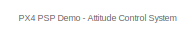
[diagram: root canvas - part 1/4, top center region]
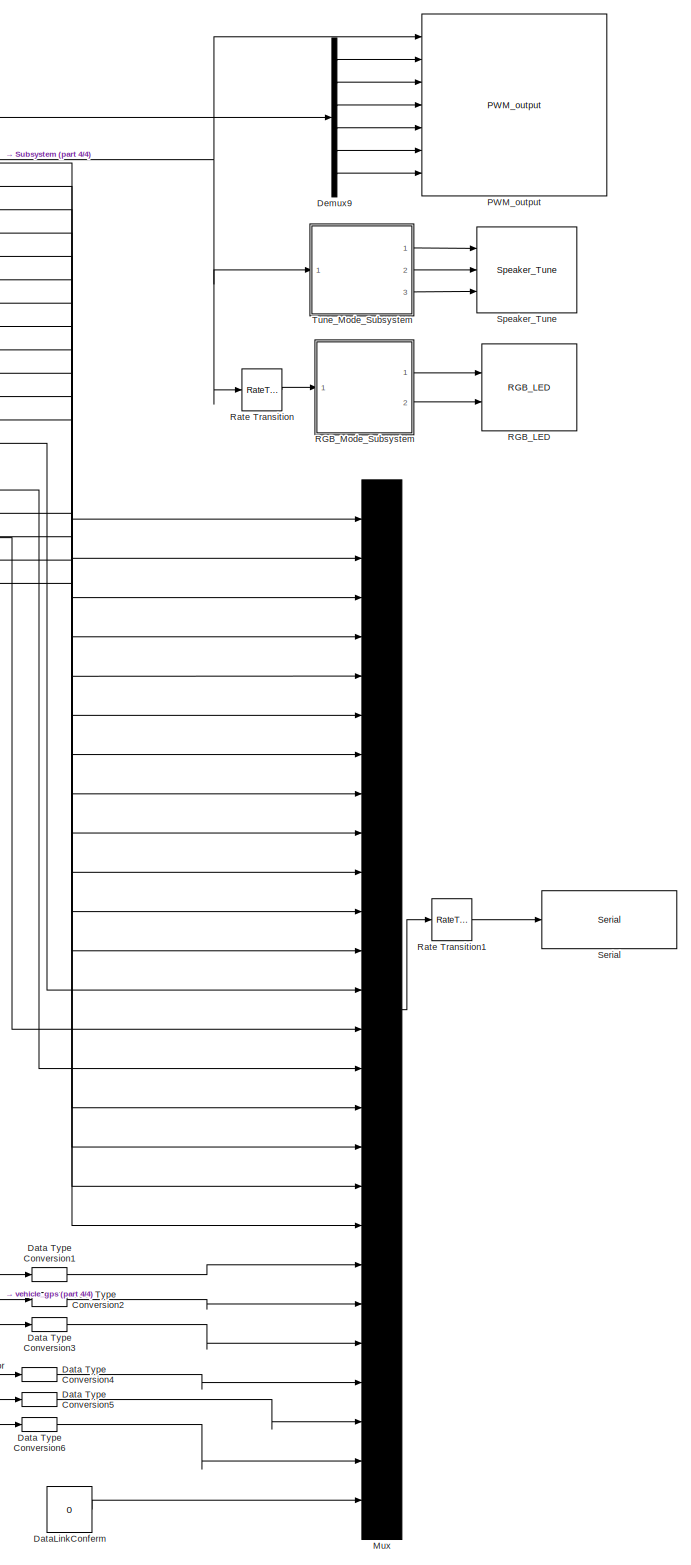
[diagram: root canvas - part 2/4, right side, full height]
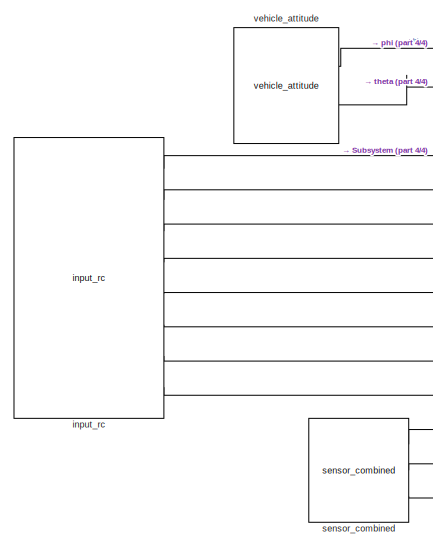
[diagram: root canvas - part 3/4, top left region]
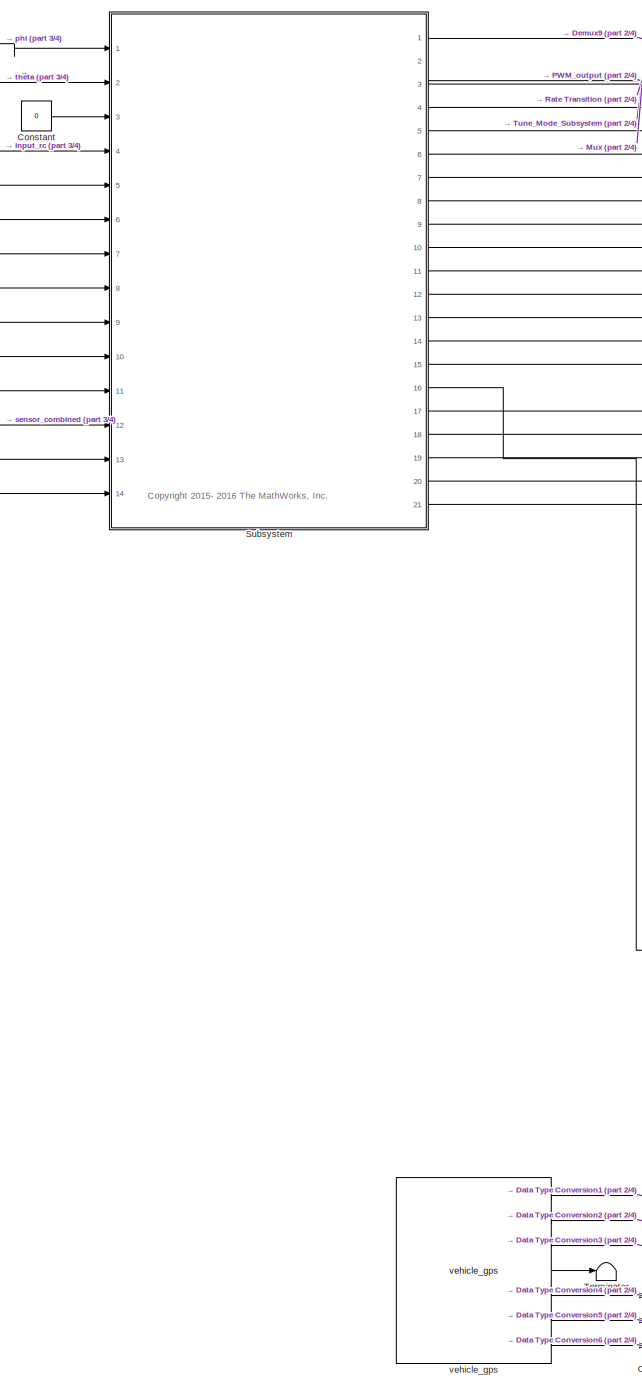
[diagram: root canvas - part 4/4, center side, full height]
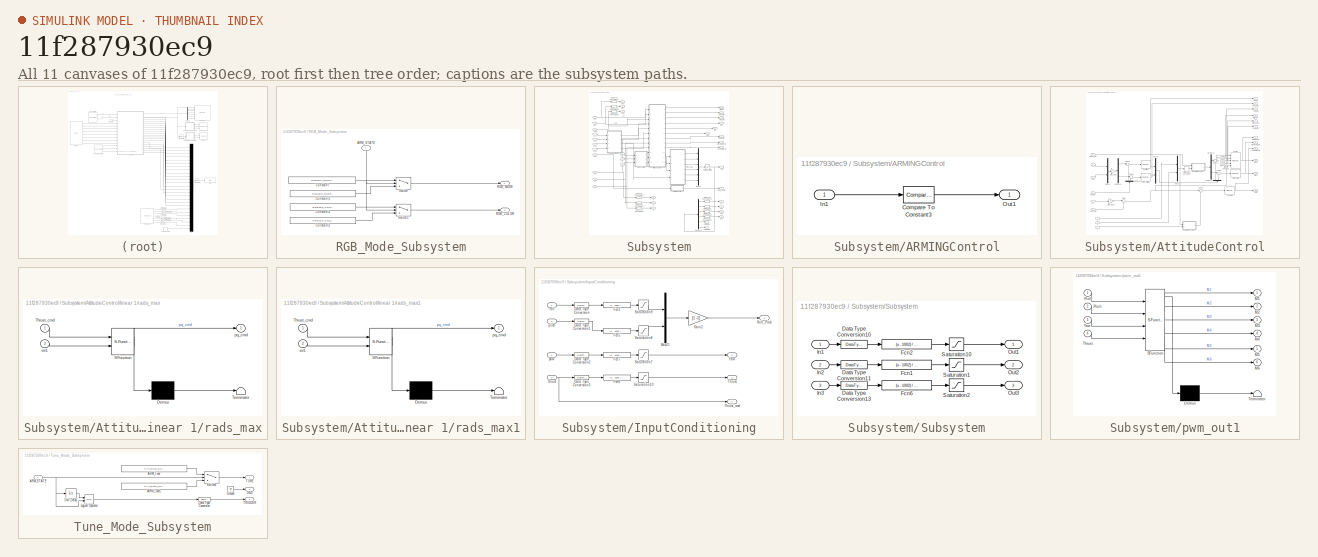
[diagram: thumbnail index - all 11 canvases of the model, root first then tree order]
MODEL slx_11f287930ec9
KIND model
CONFIG AbsTol = auto
CONFIG EnableMultiTasking = off
CONFIG FixedStep = auto
CONFIG MaxStep = auto
CONFIG MinStep = auto
CONFIG PostLoadFcn = kFactor = 1.2;\n\nKpRollAttitude = 0.630138625117681 / kFactor;\nKiRollAttitude = 0.0552303199591522 / kFactor;\n\nKpPitchAttitude = 0.630138625117681 / kFactor;\nKiPitchAttitude = 0.0552303199591522 / kFactor;\n\nKpRollRate = 1.31533836563383 / kFactor;\nKiRollRate = 0.460338699849681 / kFactor;\n\nKpPitchRate = 1.31533836563383 / kFactor;\nKiPitchRate = 0.460338699849681 / kFactor;\n\nKpYawRate = 1.3153383656...<+57ch>
CONFIG RelTol = 1e-3
CONFIG SampleTimeConstraint = Unconstrained
CONFIG Solver = FixedStepDiscrete
CONFIG SolverName = FixedStepDiscrete
CONFIG StartTime = 0.0
CONFIG StopTime = inf
BLOCK [Constant] Constant
  OutDataTypeStr = single
  Value = 0
BLOCK [DataTypeConversion] Data Type Conversion1
  OutDataTypeStr = single
  RndMeth = Floor
  SaturateOnIntegerOverflow = off
BLOCK [DataTypeConversion] Data Type Conversion2
  OutDataTypeStr = single
  RndMeth = Floor
  SaturateOnIntegerOverflow = off
BLOCK [DataTypeConversion] Data Type Conversion3
  OutDataTypeStr = single
  RndMeth = Floor
  SaturateOnIntegerOverflow = off
BLOCK [DataTypeConversion] Data Type Conversion4
  OutDataTypeStr = single
  RndMeth = Floor
  SaturateOnIntegerOverflow = off
BLOCK [DataTypeConversion] Data Type Conversion5
  OutDataTypeStr = single
  RndMeth = Floor
  SaturateOnIntegerOverflow = off
BLOCK [DataTypeConversion] Data Type Conversion6
  OutDataTypeStr = single
  RndMeth = Floor
  SaturateOnIntegerOverflow = off
BLOCK [Constant] DataLinkConferm
  OutDataTypeStr = single
  Value = 0
BLOCK [Demux] Demux9
  DisplayOption = bar
  Outputs = 6
  Ports = [1, 6]
BLOCK [Mux] Mux
  DisplayOption = bar
  Inputs = 26
  Ports = [26, 1]
BLOCK [Reference] PWM_output  REF=pixhawk_slib_sensors_actuators/PWM_output
  Ports = [7]
  SourceBlock = pixhawk_slib_sensors_actuators/PWM_output
  SourceType = PX4_Output_PWM
BLOCK [Reference] RGB_LED  REF=pixhawk_slib_sensors_actuators/RGB_LED
  Ports = [2]
  SourceBlock = pixhawk_slib_sensors_actuators/RGB_LED
  SourceType = PX4_RGBLED - controls the mode and color of the Pixhawk RGB LED
BLOCK [SubSystem] RGB_Mode_Subsystem
  Ports = [1, 2]
  RequestExecContextInheritance = off
  Variant = off
BLOCK [Inport] RGB_Mode_Subsystem/ARM_STATE
  IconDisplay = Port number
BLOCK [Constant] RGB_Mode_Subsystem/Constant
  OutDataTypeStr = Enum: RGBLED_MODE_ENUM
  Value = RGBLED_MODE_ENUM.MODE_BLINK_FAST
BLOCK [Constant] RGB_Mode_Subsystem/Constant1
  OutDataTypeStr = Enum: RGBLED_MODE_ENUM
  Value = RGBLED_MODE_ENUM.MODE_BREATHE
BLOCK [Constant] RGB_Mode_Subsystem/Constant2
  OutDataTypeStr = Enum: RGBLED_COLOR_ENUM
  Value = RGBLED_COLOR_ENUM.COLOR_GREEN
BLOCK [Constant] RGB_Mode_Subsystem/Constant3
  OutDataTypeStr = Enum: RGBLED_COLOR_ENUM
  Value = RGBLED_COLOR_ENUM.COLOR_RED
BLOCK [Outport] RGB_Mode_Subsystem/RGB_COLOR
  IconDisplay = Port number
  Port = 2
BLOCK [Outport] RGB_Mode_Subsystem/RGB_MODE
  IconDisplay = Port number
BLOCK [Switch] RGB_Mode_Subsystem/Switch
  Criteria = u2 ~= 0
  InputSameDT = off
  SampleTime = 1/2
  SaturateOnIntegerOverflow = off
  Threshold = 1500
BLOCK [Switch] RGB_Mode_Subsystem/Switch1
  Criteria = u2 ~= 0
  InputSameDT = off
  SampleTime = 1/2
  SaturateOnIntegerOverflow = off
  Threshold = 1500
BLOCK [RateTransition] Rate Transition
  OutPortSampleTime = 1
BLOCK [RateTransition] Rate Transition1
  OutPortSampleTime = 1
BLOCK [Reference] Serial  REF=pixhawk_slib_ADC_serial/Serial
  Ports = [1]
  SourceBlock = pixhawk_slib_ADC_serial/Serial
  SourceType = codertarget.pixhawk.blocks.SerialCOM
BLOCK [Reference] Speaker_Tune  REF=pixhawk_slib_sensors_actuators/Speaker_Tune
  Ports = [3]
  SourceBlock = pixhawk_slib_sensors_actuators/Speaker_Tune
  SourceType = PX4_Play_Tune - Plays a predefined tune or one based on a "string"
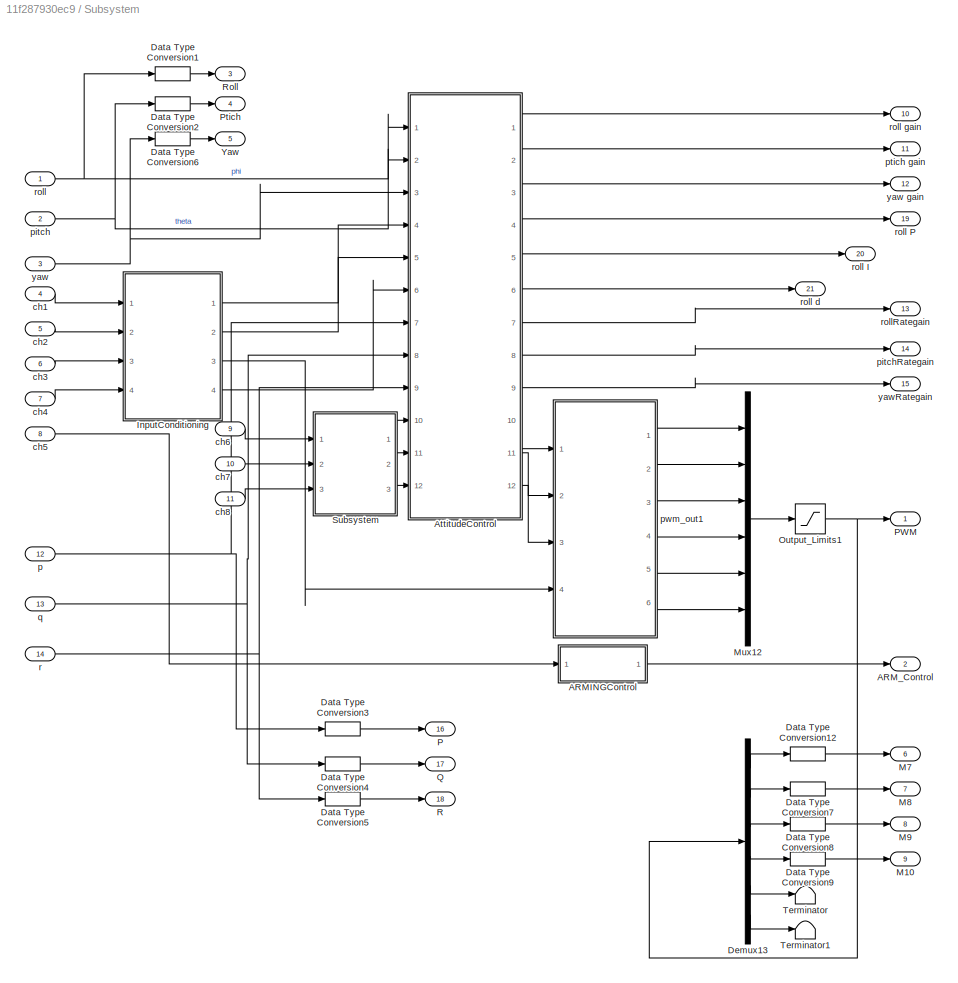
BLOCK [SubSystem] Subsystem
  Ports = [14, 21]
  RequestExecContextInheritance = off
  Variant = off
BLOCK [SubSystem] Subsystem/ARMINGControl
  Ports = [1, 1]
  RequestExecContextInheritance = off
  Variant = off
BLOCK [Reference] Subsystem/ARMINGControl/Compare To Constant3  REF=simulink/Logic and Bit
Operations/Compare
To Constant
  Ports = [1, 1]
  SourceBlock = simulink/Logic and Bit\nOperations/Compare\nTo Constant
  SourceType = Compare To Constant
BLOCK [Inport] Subsystem/ARMINGControl/In1
  IconDisplay = Port number
BLOCK [Outport] Subsystem/ARMINGControl/Out1
  IconDisplay = Port number
BLOCK [Outport] Subsystem/ARM_Control
  IconDisplay = Port number
  Port = 2
  PortDimensions = 1
  SamplingMode = Sample based
  SignalType = real
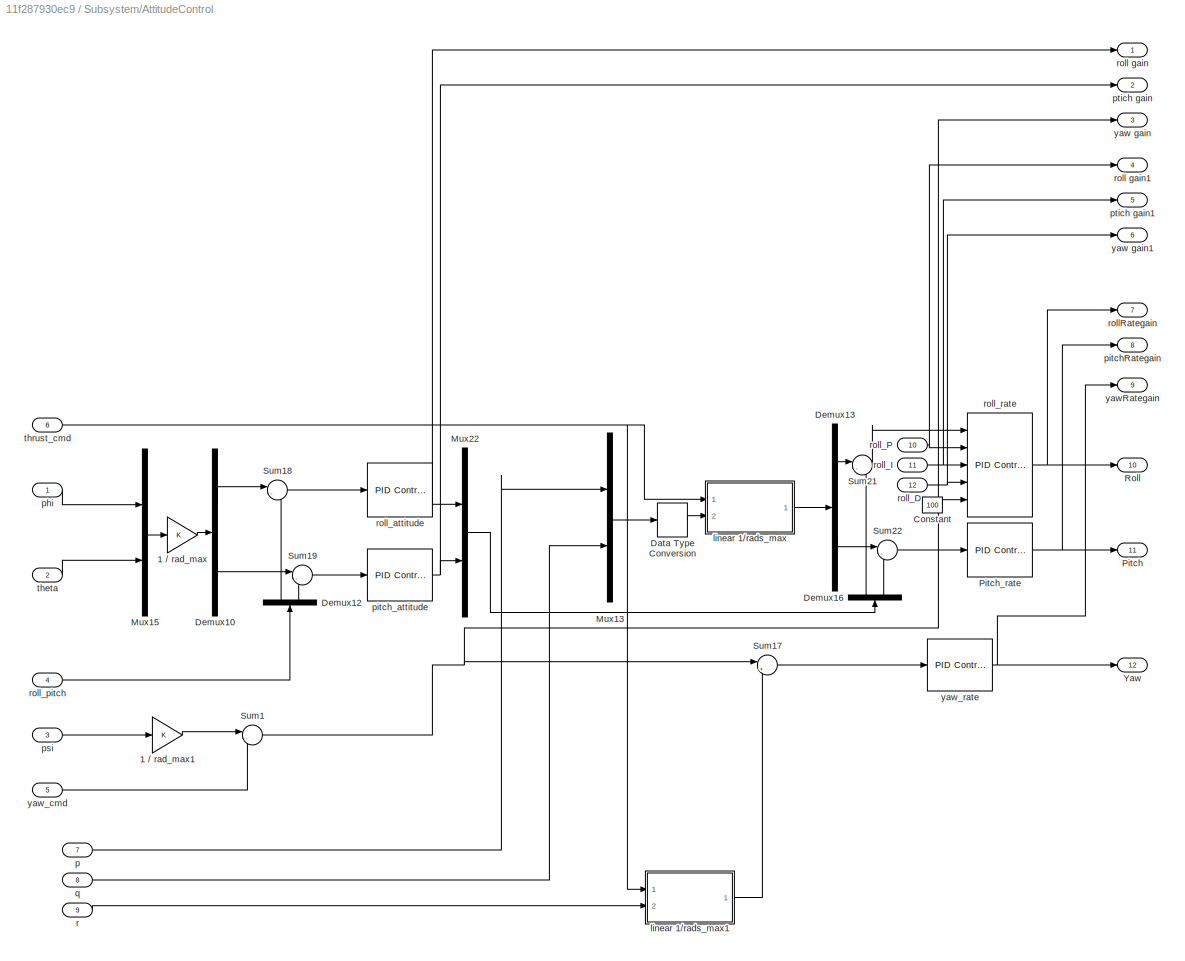
BLOCK [SubSystem] Subsystem/AttitudeControl
  Ports = [12, 12]
  RequestExecContextInheritance = off
  Variant = off
BLOCK [Gain] Subsystem/AttitudeControl/1 // rad_max
  OutDataTypeStr = Inherit: Inherit via internal rule
  ParamDataTypeStr = Inherit: Inherit via internal rule
  SaturateOnIntegerOverflow = off
BLOCK [Gain] Subsystem/AttitudeControl/1 // rad_max1
  OutDataTypeStr = Inherit: Inherit via internal rule
  ParamDataTypeStr = Inherit: Inherit via internal rule
  SaturateOnIntegerOverflow = off
BLOCK [Constant] Subsystem/AttitudeControl/Constant
  OutDataTypeStr = single
  Value = 100
BLOCK [DataTypeConversion] Subsystem/AttitudeControl/Data Type Conversion
  OutDataTypeStr = single
  RndMeth = Floor
  SaturateOnIntegerOverflow = off
BLOCK [Demux] Subsystem/AttitudeControl/Demux10
  DisplayOption = bar
  Outputs = 2
  Ports = [1, 2]
BLOCK [Demux] Subsystem/AttitudeControl/Demux12
  DisplayOption = bar
  Outputs = 2
  Ports = [1, 2]
BLOCK [Demux] Subsystem/AttitudeControl/Demux13
  DisplayOption = bar
  Outputs = 2
  Ports = [1, 2]
BLOCK [Demux] Subsystem/AttitudeControl/Demux16
  DisplayOption = bar
  Outputs = 2
  Ports = [1, 2]
BLOCK [Mux] Subsystem/AttitudeControl/Mux13
  DisplayOption = bar
  Inputs = 2
  Ports = [2, 1]
BLOCK [Mux] Subsystem/AttitudeControl/Mux15
  DisplayOption = bar
  Inputs = 2
  Ports = [2, 1]
BLOCK [Mux] Subsystem/AttitudeControl/Mux22
  DisplayOption = bar
  Inputs = 2
  Ports = [2, 1]
BLOCK [Outport] Subsystem/AttitudeControl/Pitch
  IconDisplay = Port number
  Port = 11
BLOCK [Reference] Subsystem/AttitudeControl/Pitch_rate  REF=simulink/Continuous/PID Controller
  Ports = [1, 1]
  SourceBlock = simulink/Continuous/PID Controller
  SourceType = PID 1dof
BLOCK [Outport] Subsystem/AttitudeControl/Roll
  IconDisplay = Port number
  Port = 10
BLOCK [Sum] Subsystem/AttitudeControl/Sum1
  IconShape = round
  InputSameDT = off
  Inputs = |-+
  OutDataTypeStr = Inherit: Inherit via internal rule
  Ports = [2, 1]
  SaturateOnIntegerOverflow = off
BLOCK [Sum] Subsystem/AttitudeControl/Sum17
  IconShape = round
  InputSameDT = off
  Inputs = |+-
  OutDataTypeStr = Inherit: Inherit via internal rule
  Ports = [2, 1]
  SaturateOnIntegerOverflow = off
BLOCK [Sum] Subsystem/AttitudeControl/Sum18
  IconShape = round
  InputSameDT = off
  Inputs = |-+
  OutDataTypeStr = Inherit: Inherit via internal rule
  Ports = [2, 1]
  SaturateOnIntegerOverflow = off
BLOCK [Sum] Subsystem/AttitudeControl/Sum19
  IconShape = round
  InputSameDT = off
  Inputs = |-+
  OutDataTypeStr = Inherit: Inherit via internal rule
  Ports = [2, 1]
  SaturateOnIntegerOverflow = off
BLOCK [Sum] Subsystem/AttitudeControl/Sum21
  IconShape = round
  InputSameDT = off
  Inputs = |-+
  OutDataTypeStr = Inherit: Inherit via internal rule
  Ports = [2, 1]
  SaturateOnIntegerOverflow = off
BLOCK [Sum] Subsystem/AttitudeControl/Sum22
  IconShape = round
  InputSameDT = off
  Inputs = |-+
  OutDataTypeStr = Inherit: Inherit via internal rule
  Ports = [2, 1]
  SaturateOnIntegerOverflow = off
BLOCK [Outport] Subsystem/AttitudeControl/Yaw
  IconDisplay = Port number
  Port = 12
BLOCK [SubSystem] Subsystem/AttitudeControl/linear 1//rads_max
  ErrorFcn = Stateflow.Translate.translate
  PermitHierarchicalResolution = ExplicitOnly
  Ports = [2, 1]
  RequestExecContextInheritance = off
  SFBlockType = MATLAB Function
  TreatAsAtomicUnit = on
  Variant = off
BLOCK [Demux] Subsystem/AttitudeControl/linear 1//rads_max/ Demux 
  Outputs = 1
  Ports = [1, 1]
BLOCK [S-Function] Subsystem/AttitudeControl/linear 1//rads_max/ SFunction 
  EnableBusSupport = on
  FunctionName = sf_sfun
  PortCounts = [2 2]
  Ports = [2, 2]
  SFcnIsStateOwnerBlock = off
  SFunctionDeploymentMode = off
  Tag = Stateflow S-Function px4demo_attitude_system_GCS_combined_AttiGain2 2
BLOCK [Terminator] Subsystem/AttitudeControl/linear 1//rads_max/ Terminator 
BLOCK [Inport] Subsystem/AttitudeControl/linear 1//rads_max/Thrust_cmd
  IconDisplay = Port number
BLOCK [Inport] Subsystem/AttitudeControl/linear 1//rads_max/err1
  IconDisplay = Port number
  Port = 2
BLOCK [Outport] Subsystem/AttitudeControl/linear 1//rads_max/pq_cmd
  IconDisplay = Port number
BLOCK [SubSystem] Subsystem/AttitudeControl/linear 1//rads_max1
  ErrorFcn = Stateflow.Translate.translate
  PermitHierarchicalResolution = ExplicitOnly
  Ports = [2, 1]
  RequestExecContextInheritance = off
  SFBlockType = MATLAB Function
  TreatAsAtomicUnit = on
  Variant = off
BLOCK [Demux] Subsystem/AttitudeControl/linear 1//rads_max1/ Demux 
  Outputs = 1
  Ports = [1, 1]
BLOCK [S-Function] Subsystem/AttitudeControl/linear 1//rads_max1/ SFunction 
  EnableBusSupport = on
  FunctionName = sf_sfun
  PortCounts = [2 2]
  Ports = [2, 2]
  SFcnIsStateOwnerBlock = off
  SFunctionDeploymentMode = off
  Tag = Stateflow S-Function px4demo_attitude_system_GCS_combined_AttiGain2 1
BLOCK [Terminator] Subsystem/AttitudeControl/linear 1//rads_max1/ Terminator 
BLOCK [Inport] Subsystem/AttitudeControl/linear 1//rads_max1/Thrust_cmd
  IconDisplay = Port number
BLOCK [Inport] Subsystem/AttitudeControl/linear 1//rads_max1/err1
  IconDisplay = Port number
  Port = 2
BLOCK [Outport] Subsystem/AttitudeControl/linear 1//rads_max1/pq_cmd
  IconDisplay = Port number
BLOCK [Inport] Subsystem/AttitudeControl/p
  IconDisplay = Port number
  Port = 7
BLOCK [Inport] Subsystem/AttitudeControl/phi
  IconDisplay = Port number
BLOCK [Outport] Subsystem/AttitudeControl/pitchRategain
  IconDisplay = Port number
  Port = 8
BLOCK [Reference] Subsystem/AttitudeControl/pitch_attitude  REF=simulink/Continuous/PID Controller
  Ports = [1, 1]
  SourceBlock = simulink/Continuous/PID Controller
  SourceType = PID 1dof
BLOCK [Inport] Subsystem/AttitudeControl/psi
  IconDisplay = Port number
  Port = 3
BLOCK [Outport] Subsystem/AttitudeControl/ptich gain
  IconDisplay = Port number
  Port = 2
BLOCK [Outport] Subsystem/AttitudeControl/ptich gain1
  IconDisplay = Port number
  Port = 5
BLOCK [Inport] Subsystem/AttitudeControl/q
  IconDisplay = Port number
  Port = 8
BLOCK [Inport] Subsystem/AttitudeControl/r
  IconDisplay = Port number
  Port = 9
BLOCK [Outport] Subsystem/AttitudeControl/roll gain
  IconDisplay = Port number
BLOCK [Outport] Subsystem/AttitudeControl/roll gain1
  IconDisplay = Port number
  Port = 4
BLOCK [Outport] Subsystem/AttitudeControl/rollRategain
  IconDisplay = Port number
  Port = 7
BLOCK [Inport] Subsystem/AttitudeControl/roll_D
  IconDisplay = Port number
  Port = 12
BLOCK [Inport] Subsystem/AttitudeControl/roll_I
  IconDisplay = Port number
  Port = 11
BLOCK [Inport] Subsystem/AttitudeControl/roll_P
  IconDisplay = Port number
  Port = 10
BLOCK [Reference] Subsystem/AttitudeControl/roll_attitude  REF=simulink/Continuous/PID Controller
  Ports = [1, 1]
  SourceBlock = simulink/Continuous/PID Controller
  SourceType = PID 1dof
BLOCK [Inport] Subsystem/AttitudeControl/roll_pitch
  IconDisplay = Port number
  Port = 4
BLOCK [Reference] Subsystem/AttitudeControl/roll_rate  REF=simulink/Continuous/PID Controller
  Ports = [5, 1]
  SourceBlock = simulink/Continuous/PID Controller
  SourceType = PID 1dof
BLOCK [Inport] Subsystem/AttitudeControl/theta
  IconDisplay = Port number
  Port = 2
BLOCK [Inport] Subsystem/AttitudeControl/thrust_cmd
  IconDisplay = Port number
  Port = 6
BLOCK [Outport] Subsystem/AttitudeControl/yaw gain
  IconDisplay = Port number
  Port = 3
BLOCK [Outport] Subsystem/AttitudeControl/yaw gain1
  IconDisplay = Port number
  Port = 6
BLOCK [Outport] Subsystem/AttitudeControl/yawRategain
  IconDisplay = Port number
  Port = 9
BLOCK [Inport] Subsystem/AttitudeControl/yaw_cmd
  IconDisplay = Port number
  Port = 5
BLOCK [Reference] Subsystem/AttitudeControl/yaw_rate  REF=simulink/Continuous/PID Controller
  Ports = [1, 1]
  SourceBlock = simulink/Continuous/PID Controller
  SourceType = PID 1dof
BLOCK [DataTypeConversion] Subsystem/Data Type Conversion1
  OutDataTypeStr = single
  RndMeth = Floor
  SaturateOnIntegerOverflow = off
BLOCK [DataTypeConversion] Subsystem/Data Type Conversion12
  OutDataTypeStr = single
  RndMeth = Floor
  SaturateOnIntegerOverflow = off
BLOCK [DataTypeConversion] Subsystem/Data Type Conversion2
  OutDataTypeStr = single
  RndMeth = Floor
  SaturateOnIntegerOverflow = off
BLOCK [DataTypeConversion] Subsystem/Data Type Conversion3
  OutDataTypeStr = single
  RndMeth = Floor
  SaturateOnIntegerOverflow = off
BLOCK [DataTypeConversion] Subsystem/Data Type Conversion4
  OutDataTypeStr = single
  RndMeth = Floor
  SaturateOnIntegerOverflow = off
BLOCK [DataTypeConversion] Subsystem/Data Type Conversion5
  OutDataTypeStr = single
  RndMeth = Floor
  SaturateOnIntegerOverflow = off
BLOCK [DataTypeConversion] Subsystem/Data Type Conversion6
  OutDataTypeStr = single
  RndMeth = Floor
  SaturateOnIntegerOverflow = off
BLOCK [DataTypeConversion] Subsystem/Data Type Conversion7
  OutDataTypeStr = single
  RndMeth = Floor
  SaturateOnIntegerOverflow = off
BLOCK [DataTypeConversion] Subsystem/Data Type Conversion8
  OutDataTypeStr = single
  RndMeth = Floor
  SaturateOnIntegerOverflow = off
BLOCK [DataTypeConversion] Subsystem/Data Type Conversion9
  OutDataTypeStr = single
  RndMeth = Floor
  SaturateOnIntegerOverflow = off
BLOCK [Demux] Subsystem/Demux13
  DisplayOption = bar
  Outputs = 6
  Ports = [1, 6]
BLOCK [SubSystem] Subsystem/InputConditioning
  Ports = [4, 4]
  RequestExecContextInheritance = off
  Variant = off
BLOCK [DataTypeConversion] Subsystem/InputConditioning/Data Type Conversion
  OutDataTypeStr = single
  RndMeth = Floor
  SaturateOnIntegerOverflow = off
BLOCK [DataTypeConversion] Subsystem/InputConditioning/Data Type Conversion1
  OutDataTypeStr = single
  RndMeth = Floor
  SaturateOnIntegerOverflow = off
BLOCK [DataTypeConversion] Subsystem/InputConditioning/Data Type Conversion2
  OutDataTypeStr = single
  RndMeth = Floor
  SaturateOnIntegerOverflow = off
BLOCK [DataTypeConversion] Subsystem/InputConditioning/Data Type Conversion3
  OutDataTypeStr = single
  RndMeth = Floor
  SaturateOnIntegerOverflow = off
BLOCK [Fcn] Subsystem/InputConditioning/Fcn2
  Expr = (u - 1500) / 500
BLOCK [Fcn] Subsystem/InputConditioning/Fcn5
  Expr = (u - 1500) / 500
BLOCK [Fcn] Subsystem/InputConditioning/Fcn6
  Expr = (u - 1000) / 1000
BLOCK [Fcn] Subsystem/InputConditioning/Fcn7
  Expr = (u - 1500) / 500
BLOCK [Gain] Subsystem/InputConditioning/Gain2
  Gain = [1 -1]
  OutDataTypeStr = Inherit: Inherit via back propagation
  ParamDataTypeStr = Inherit: Inherit via internal rule
  SaturateOnIntegerOverflow = off
BLOCK [Mux] Subsystem/InputConditioning/Mux21
  DisplayOption = bar
  Inputs = 2
  Ports = [2, 1]
BLOCK [Outport] Subsystem/InputConditioning/Roll_Pitch
  IconDisplay = Port number
BLOCK [Saturate] Subsystem/InputConditioning/Saturation10
  InputPortMap = u0
  LowerLimit = 0
  Ports = [1, 1]
  UpperLimit = 1
BLOCK [Saturate] Subsystem/InputConditioning/Saturation7
  InputPortMap = u0
  LowerLimit = -1
  Ports = [1, 1]
  UpperLimit = 1
BLOCK [Saturate] Subsystem/InputConditioning/Saturation8
  InputPortMap = u0
  LowerLimit = -1
  Ports = [1, 1]
  UpperLimit = 1
BLOCK [Saturate] Subsystem/InputConditioning/Saturation9
  InputPortMap = u0
  LowerLimit = -1
  Ports = [1, 1]
  UpperLimit = 1
BLOCK [Outport] Subsystem/InputConditioning/Thrust
  IconDisplay = Port number
  Port = 3
BLOCK [Outport] Subsystem/InputConditioning/Thrust_cmd
  IconDisplay = Port number
  Port = 4
BLOCK [Outport] Subsystem/InputConditioning/Yaw
  IconDisplay = Port number
  Port = 2
BLOCK [Inport] Subsystem/InputConditioning/pitch
  IconDisplay = Port number
  Port = 2
BLOCK [Inport] Subsystem/InputConditioning/roll
  IconDisplay = Port number
BLOCK [Inport] Subsystem/InputConditioning/thrust
  IconDisplay = Port number
  Port = 3
BLOCK [Inport] Subsystem/InputConditioning/yaw
  IconDisplay = Port number
  Port = 4
BLOCK [Outport] Subsystem/M10
  IconDisplay = Port number
  Port = 9
  PortDimensions = 1
  SamplingMode = Sample based
  SignalType = real
BLOCK [Outport] Subsystem/M7
  IconDisplay = Port number
  Port = 6
  PortDimensions = 1
  SamplingMode = Sample based
  SignalType = real
BLOCK [Outport] Subsystem/M8
  IconDisplay = Port number
  Port = 7
  PortDimensions = 1
  SamplingMode = Sample based
  SignalType = real
BLOCK [Outport] Subsystem/M9
  IconDisplay = Port number
  Port = 8
  PortDimensions = 1
  SamplingMode = Sample based
  SignalType = real
BLOCK [Mux] Subsystem/Mux12
  DisplayOption = bar
  Inputs = 6
  Ports = [6, 1]
BLOCK [Saturate] Subsystem/Output_Limits1
  InputPortMap = u0
  LowerLimit = 1000
  Ports = [1, 1]
  UpperLimit = 2000
BLOCK [Outport] Subsystem/P
  IconDisplay = Port number
  Port = 16
  PortDimensions = 1
  SamplingMode = Sample based
  SignalType = real
BLOCK [Outport] Subsystem/PWM
  IconDisplay = Port number
  PortDimensions = 6
  SamplingMode = Sample based
  SignalType = real
BLOCK [Outport] Subsystem/Ptich
  IconDisplay = Port number
  Port = 4
  PortDimensions = 1
  SamplingMode = Sample based
  SignalType = real
BLOCK [Outport] Subsystem/Q
  IconDisplay = Port number
  Port = 17
  PortDimensions = 1
  SamplingMode = Sample based
  SignalType = real
BLOCK [Outport] Subsystem/R
  IconDisplay = Port number
  Port = 18
  PortDimensions = 1
  SamplingMode = Sample based
  SignalType = real
BLOCK [Outport] Subsystem/Roll
  IconDisplay = Port number
  Port = 3
  PortDimensions = 1
  SamplingMode = Sample based
  SignalType = real
BLOCK [SubSystem] Subsystem/Subsystem
  Ports = [3, 3]
  RequestExecContextInheritance = off
  Variant = off
BLOCK [DataTypeConversion] Subsystem/Subsystem/Data Type Conversion10
  OutDataTypeStr = single
  RndMeth = Floor
  SaturateOnIntegerOverflow = off
BLOCK [DataTypeConversion] Subsystem/Subsystem/Data Type Conversion11
  OutDataTypeStr = single
  RndMeth = Floor
  SaturateOnIntegerOverflow = off
BLOCK [DataTypeConversion] Subsystem/Subsystem/Data Type Conversion13
  OutDataTypeStr = single
  RndMeth = Floor
  SaturateOnIntegerOverflow = off
BLOCK [Fcn] Subsystem/Subsystem/Fcn1
  Expr = (u - 1002) / 996
BLOCK [Fcn] Subsystem/Subsystem/Fcn2
  Expr = (u - 1002) / 996
BLOCK [Fcn] Subsystem/Subsystem/Fcn6
  Expr = (u - 1002) / 996
BLOCK [Inport] Subsystem/Subsystem/In1
  IconDisplay = Port number
BLOCK [Inport] Subsystem/Subsystem/In2
  IconDisplay = Port number
  Port = 2
BLOCK [Inport] Subsystem/Subsystem/In3
  IconDisplay = Port number
  Port = 3
BLOCK [Outport] Subsystem/Subsystem/Out1
  IconDisplay = Port number
BLOCK [Outport] Subsystem/Subsystem/Out2
  IconDisplay = Port number
  Port = 2
BLOCK [Outport] Subsystem/Subsystem/Out3
  IconDisplay = Port number
  Port = 3
BLOCK [Saturate] Subsystem/Subsystem/Saturation1
  InputPortMap = u0
  LowerLimit = 0
  Ports = [1, 1]
  UpperLimit = 1
BLOCK [Saturate] Subsystem/Subsystem/Saturation10
  InputPortMap = u0
  LowerLimit = 0
  Ports = [1, 1]
  UpperLimit = 1
BLOCK [Saturate] Subsystem/Subsystem/Saturation2
  InputPortMap = u0
  LowerLimit = 0
  Ports = [1, 1]
  UpperLimit = 1
BLOCK [Terminator] Subsystem/Terminator
BLOCK [Terminator] Subsystem/Terminator1
BLOCK [Outport] Subsystem/Yaw
  IconDisplay = Port number
  Port = 5
  PortDimensions = 1
  SamplingMode = Sample based
  SignalType = real
BLOCK [Inport] Subsystem/ch1
  IconDisplay = Port number
  OutDataTypeStr = uint16
  Port = 4
  PortDimensions = 1
  SamplingMode = Sample based
  SignalType = real
BLOCK [Inport] Subsystem/ch2
  IconDisplay = Port number
  OutDataTypeStr = uint16
  Port = 5
  PortDimensions = 1
  SamplingMode = Sample based
  SignalType = real
BLOCK [Inport] Subsystem/ch3
  IconDisplay = Port number
  OutDataTypeStr = uint16
  Port = 6
  PortDimensions = 1
  SamplingMode = Sample based
  SignalType = real
BLOCK [Inport] Subsystem/ch4
  IconDisplay = Port number
  OutDataTypeStr = uint16
  Port = 7
  PortDimensions = 1
  SamplingMode = Sample based
  SignalType = real
BLOCK [Inport] Subsystem/ch5
  IconDisplay = Port number
  Interpolate = off
  OutDataTypeStr = uint16
  Port = 8
  PortDimensions = 1
  SamplingMode = Sample based
  SignalType = real
BLOCK [Inport] Subsystem/ch6
  IconDisplay = Port number
  OutDataTypeStr = uint16
  Port = 9
  PortDimensions = 1
  SamplingMode = Sample based
  SignalType = real
BLOCK [Inport] Subsystem/ch7
  IconDisplay = Port number
  OutDataTypeStr = uint16
  Port = 10
  PortDimensions = 1
  SamplingMode = Sample based
  SignalType = real
BLOCK [Inport] Subsystem/ch8
  IconDisplay = Port number
  OutDataTypeStr = uint16
  Port = 11
  PortDimensions = 1
  SamplingMode = Sample based
  SignalType = real
BLOCK [Inport] Subsystem/p
  IconDisplay = Port number
  OutDataTypeStr = single
  Port = 12
  PortDimensions = 1
  SamplingMode = Sample based
  SignalType = real
BLOCK [Inport] Subsystem/pitch
  IconDisplay = Port number
  Port = 2
  PortDimensions = 1
  SamplingMode = Sample based
  SignalType = real
BLOCK [Outport] Subsystem/pitchRategain
  IconDisplay = Port number
  Port = 14
BLOCK [Outport] Subsystem/ptich gain
  IconDisplay = Port number
  Port = 11
BLOCK [SubSystem] Subsystem/pwm_out1
  ErrorFcn = Stateflow.Translate.translate
  PermitHierarchicalResolution = ExplicitOnly
  Ports = [4, 6]
  RequestExecContextInheritance = off
  SFBlockType = MATLAB Function
  SystemSampleTime = 0.004
  TreatAsAtomicUnit = on
  Variant = off
BLOCK [Demux] Subsystem/pwm_out1/ Demux 
  Outputs = 1
  Ports = [1, 1]
BLOCK [S-Function] Subsystem/pwm_out1/ SFunction 
  EnableBusSupport = on
  FunctionName = sf_sfun
  PortCounts = [4 7]
  Ports = [4, 7]
  SFcnIsStateOwnerBlock = off
  SFunctionDeploymentMode = off
  Tag = Stateflow S-Function px4demo_attitude_system_GCS_combined_AttiGain2 4
BLOCK [Terminator] Subsystem/pwm_out1/ Terminator 
BLOCK [Outport] Subsystem/pwm_out1/M1
  IconDisplay = Port number
BLOCK [Outport] Subsystem/pwm_out1/M2
  IconDisplay = Port number
  Port = 2
BLOCK [Outport] Subsystem/pwm_out1/M3
  IconDisplay = Port number
  Port = 3
BLOCK [Outport] Subsystem/pwm_out1/M4
  IconDisplay = Port number
  Port = 4
BLOCK [Outport] Subsystem/pwm_out1/M5
  IconDisplay = Port number
  Port = 5
BLOCK [Outport] Subsystem/pwm_out1/M6
  IconDisplay = Port number
  Port = 6
BLOCK [Inport] Subsystem/pwm_out1/Pitch
  IconDisplay = Port number
  Port = 2
BLOCK [Inport] Subsystem/pwm_out1/Roll
  IconDisplay = Port number
BLOCK [Inport] Subsystem/pwm_out1/Thrust
  IconDisplay = Port number
  Port = 4
BLOCK [Inport] Subsystem/pwm_out1/Yaw
  IconDisplay = Port number
  Port = 3
BLOCK [Inport] Subsystem/q
  IconDisplay = Port number
  OutDataTypeStr = single
  Port = 13
  PortDimensions = 1
  SamplingMode = Sample based
  SignalType = real
BLOCK [Inport] Subsystem/r
  IconDisplay = Port number
  Port = 14
  PortDimensions = 1
  SamplingMode = Sample based
  SignalType = real
BLOCK [Inport] Subsystem/roll
  IconDisplay = Port number
  OutDataTypeStr = single
  PortDimensions = 1
  SamplingMode = Sample based
  SignalType = real
BLOCK [Outport] Subsystem/roll I
  IconDisplay = Port number
  Port = 20
BLOCK [Outport] Subsystem/roll P
  IconDisplay = Port number
  Port = 19
BLOCK [Outport] Subsystem/roll d
  IconDisplay = Port number
  Port = 21
BLOCK [Outport] Subsystem/roll gain
  IconDisplay = Port number
  Port = 10
BLOCK [Outport] Subsystem/rollRategain
  IconDisplay = Port number
  Port = 13
BLOCK [Inport] Subsystem/yaw
  IconDisplay = Port number
  Port = 3
  PortDimensions = 1
  SamplingMode = Sample based
  SignalType = real
BLOCK [Outport] Subsystem/yaw gain
  IconDisplay = Port number
  Port = 12
BLOCK [Outport] Subsystem/yawRategain
  IconDisplay = Port number
  Port = 15
BLOCK [Terminator] Terminator
BLOCK [SubSystem] Tune_Mode_Subsystem
  Ports = [1, 3]
  RequestExecContextInheritance = off
  Variant = off
BLOCK [Inport] Tune_Mode_Subsystem/ARM_STATE
  IconDisplay = Port number
BLOCK [Constant] Tune_Mode_Subsystem/ARM_Tune
  OutDataTypeStr = Enum: PX4_TUNE_ENUM
  Value = PX4_TUNE_ENUM.ARMING_WARNING_TUNE
BLOCK [Constant] Tune_Mode_Subsystem/ARM_Tune1
  OutDataTypeStr = Enum: PX4_TUNE_ENUM
  Value = PX4_TUNE_ENUM.NOTIFY_POSITIVE_TUNE
BLOCK [DataTypeConversion] Tune_Mode_Subsystem/Data Type Conversion
  OutDataTypeStr = uint8
  RndMeth = Floor
  SaturateOnIntegerOverflow = off
BLOCK [Outport] Tune_Mode_Subsystem/GND
  IconDisplay = Port number
  Port = 2
BLOCK [Ground] Tune_Mode_Subsystem/Ground
BLOCK [Logic] Tune_Mode_Subsystem/Logical Operator
  AllPortsSameDT = off
  IconShape = distinctive
  Operator = XOR
  OutDataTypeStr = boolean
  Ports = [2, 1]
BLOCK [Switch] Tune_Mode_Subsystem/Switch1
  Criteria = u2 ~= 0
  InputSameDT = off
  SaturateOnIntegerOverflow = off
  Threshold = 1500
BLOCK [Outport] Tune_Mode_Subsystem/TRIGGER
  IconDisplay = Port number
  Port = 3
BLOCK [Outport] Tune_Mode_Subsystem/TUNE
  IconDisplay = Port number
BLOCK [UnitDelay] Tune_Mode_Subsystem/Unit Delay
  InputProcessing = Elements as channels (sample based)
  SampleTime = -1
BLOCK [Reference] input_rc  REF=pixhawk_slib_sensors_actuators/input_rc
  Ports = [0, 8]
  SourceBlock = pixhawk_slib_sensors_actuators/input_rc
  SourceType = PX4_Input_RC
BLOCK [Reference] sensor_combined  REF=pixhawk_slib_sensors_actuators/sensor_combined
  Ports = [0, 3]
  SourceBlock = pixhawk_slib_sensors_actuators/sensor_combined
  SourceType = PX4_Sensor_Combined
BLOCK [Reference] vehicle_attitude  REF=pixhawk_slib_sensors_actuators/vehicle_attitude
  Ports = [0, 2]
  SourceBlock = pixhawk_slib_sensors_actuators/vehicle_attitude
  SourceType = PX4_Vehicle_Attitude
BLOCK [Reference] vehicle_gps  REF=pixhawk_slib_sensors_actuators/vehicle_gps
  Ports = [0, 7]
  SourceBlock = pixhawk_slib_sensors_actuators/vehicle_gps
  SourceType = PX4_Vehicle_GPS
ANNOTATION (root): PX4 PSP Demo - Attitude Control System
ANNOTATION (root): <copyright redacted>
LINE Constant:1 -> Subsystem:3
LINE Data Type Conversion1:1 -> Mux:20
LINE Data Type Conversion2:1 -> Mux:21
LINE Data Type Conversion3:1 -> Mux:22
LINE Data Type Conversion4:1 -> Mux:23
LINE Data Type Conversion5:1 -> Mux:24
LINE Data Type Conversion6:1 -> Mux:25
LINE DataLinkConferm:1 -> Mux:26
LINE Demux9:1 -> PWM_output:2
LINE Demux9:2 -> PWM_output:3
LINE Demux9:3 -> PWM_output:4
LINE Demux9:4 -> PWM_output:5
LINE Demux9:5 -> PWM_output:6
LINE Demux9:6 -> PWM_output:7
LINE Mux:1 -> Rate Transition1:1
NET RGB_Mode_Subsystem/ARM_STATE:1 -> RGB_Mode_Subsystem/Switch1:2, RGB_Mode_Subsystem/Switch:2
LINE RGB_Mode_Subsystem/Constant1:1 -> RGB_Mode_Subsystem/Switch:3
LINE RGB_Mode_Subsystem/Constant2:1 -> RGB_Mode_Subsystem/Switch1:3
LINE RGB_Mode_Subsystem/Constant3:1 -> RGB_Mode_Subsystem/Switch1:1
LINE RGB_Mode_Subsystem/Constant:1 -> RGB_Mode_Subsystem/Switch:1
LINE RGB_Mode_Subsystem/Switch1:1 -> RGB_Mode_Subsystem/RGB_COLOR:1
LINE RGB_Mode_Subsystem/Switch:1 -> RGB_Mode_Subsystem/RGB_MODE:1
LINE RGB_Mode_Subsystem:1 -> RGB_LED:1
LINE RGB_Mode_Subsystem:2 -> RGB_LED:2
LINE Rate Transition1:1 -> Serial:1
LINE Rate Transition:1 -> RGB_Mode_Subsystem:1
LINE Subsystem/ARMINGControl/Compare To Constant3:1 -> Subsystem/ARMINGControl/Out1:1
LINE Subsystem/ARMINGControl/In1:1 -> Subsystem/ARMINGControl/Compare To Constant3:1
LINE Subsystem/ARMINGControl:1 -> Subsystem/ARM_Control:1
LINE Subsystem/AttitudeControl/1 // rad_max1:1 -> Subsystem/AttitudeControl/Sum1:1
LINE Subsystem/AttitudeControl/1 // rad_max:1 -> Subsystem/AttitudeControl/Demux10:1
LINE Subsystem/AttitudeControl/Constant:1 -> Subsystem/AttitudeControl/roll_rate:5
LINE Subsystem/AttitudeControl/Data Type Conversion:1 -> Subsystem/AttitudeControl/linear 1//rads_max:2
LINE Subsystem/AttitudeControl/Demux10:1 -> Subsystem/AttitudeControl/Sum18:1
LINE Subsystem/AttitudeControl/Demux10:2 -> Subsystem/AttitudeControl/Sum19:1
LINE Subsystem/AttitudeControl/Demux12:1 -> Subsystem/AttitudeControl/Sum18:2
LINE Subsystem/AttitudeControl/Demux12:2 -> Subsystem/AttitudeControl/Sum19:2
LINE Subsystem/AttitudeControl/Demux13:1 -> Subsystem/AttitudeControl/Sum21:1
LINE Subsystem/AttitudeControl/Demux13:2 -> Subsystem/AttitudeControl/Sum22:1
LINE Subsystem/AttitudeControl/Demux16:1 -> Subsystem/AttitudeControl/Sum21:2
LINE Subsystem/AttitudeControl/Demux16:2 -> Subsystem/AttitudeControl/Sum22:2
LINE Subsystem/AttitudeControl/Mux13:1 -> Subsystem/AttitudeControl/Data Type Conversion:1
LINE Subsystem/AttitudeControl/Mux15:1 -> Subsystem/AttitudeControl/1 // rad_max:1
LINE Subsystem/AttitudeControl/Mux22:1 -> Subsystem/AttitudeControl/Demux16:1
NET Subsystem/AttitudeControl/Pitch_rate:1 -> Subsystem/AttitudeControl/Pitch:1, Subsystem/AttitudeControl/pitchRategain:1
LINE Subsystem/AttitudeControl/Sum17:1 -> Subsystem/AttitudeControl/yaw_rate:1
LINE Subsystem/AttitudeControl/Sum18:1 -> Subsystem/AttitudeControl/roll_attitude:1
LINE Subsystem/AttitudeControl/Sum19:1 -> Subsystem/AttitudeControl/pitch_attitude:1
NET Subsystem/AttitudeControl/Sum1:1 -> Subsystem/AttitudeControl/Sum17:1, Subsystem/AttitudeControl/yaw gain:1
LINE Subsystem/AttitudeControl/Sum21:1 -> Subsystem/AttitudeControl/roll_rate:1
LINE Subsystem/AttitudeControl/Sum22:1 -> Subsystem/AttitudeControl/Pitch_rate:1
LINE Subsystem/AttitudeControl/linear 1//rads_max1:1 -> Subsystem/AttitudeControl/Sum17:2
LINE Subsystem/AttitudeControl/linear 1//rads_max:1 -> Subsystem/AttitudeControl/Demux13:1
LINE Subsystem/AttitudeControl/p:1 -> Subsystem/AttitudeControl/Mux13:1
LINE Subsystem/AttitudeControl/phi:1 -> Subsystem/AttitudeControl/Mux15:1
NET Subsystem/AttitudeControl/pitch_attitude:1 -> Subsystem/AttitudeControl/Mux22:2, Subsystem/AttitudeControl/ptich gain:1
LINE Subsystem/AttitudeControl/psi:1 -> Subsystem/AttitudeControl/1 // rad_max1:1
LINE Subsystem/AttitudeControl/q:1 -> Subsystem/AttitudeControl/Mux13:2
LINE Subsystem/AttitudeControl/r:1 -> Subsystem/AttitudeControl/linear 1//rads_max1:2
NET Subsystem/AttitudeControl/roll_D:1 -> Subsystem/AttitudeControl/roll_rate:4, Subsystem/AttitudeControl/yaw gain1:1
NET Subsystem/AttitudeControl/roll_I:1 -> Subsystem/AttitudeControl/ptich gain1:1, Subsystem/AttitudeControl/roll_rate:3
NET Subsystem/AttitudeControl/roll_P:1 -> Subsystem/AttitudeControl/roll gain1:1, Subsystem/AttitudeControl/roll_rate:2
NET Subsystem/AttitudeControl/roll_attitude:1 -> Subsystem/AttitudeControl/Mux22:1, Subsystem/AttitudeControl/roll gain:1
LINE Subsystem/AttitudeControl/roll_pitch:1 -> Subsystem/AttitudeControl/Demux12:1
NET Subsystem/AttitudeControl/roll_rate:1 -> Subsystem/AttitudeControl/Roll:1, Subsystem/AttitudeControl/rollRategain:1
LINE Subsystem/AttitudeControl/theta:1 -> Subsystem/AttitudeControl/Mux15:2
NET Subsystem/AttitudeControl/thrust_cmd:1 -> Subsystem/AttitudeControl/linear 1//rads_max1:1, Subsystem/AttitudeControl/linear 1//rads_max:1
LINE Subsystem/AttitudeControl/yaw_cmd:1 -> Subsystem/AttitudeControl/Sum1:2
NET Subsystem/AttitudeControl/yaw_rate:1 -> Subsystem/AttitudeControl/Yaw:1, Subsystem/AttitudeControl/yawRategain:1
LINE Subsystem/AttitudeControl:1 -> Subsystem/roll gain:1
LINE Subsystem/AttitudeControl:10 -> Subsystem/pwm_out1:1
LINE Subsystem/AttitudeControl:11 -> Subsystem/pwm_out1:2
LINE Subsystem/AttitudeControl:12 -> Subsystem/pwm_out1:3
LINE Subsystem/AttitudeControl:2 -> Subsystem/ptich gain:1
LINE Subsystem/AttitudeControl:3 -> Subsystem/yaw gain:1
LINE Subsystem/AttitudeControl:4 -> Subsystem/roll P:1
LINE Subsystem/AttitudeControl:5 -> Subsystem/roll I:1
LINE Subsystem/AttitudeControl:6 -> Subsystem/roll d:1
LINE Subsystem/AttitudeControl:7 -> Subsystem/rollRategain:1
LINE Subsystem/AttitudeControl:8 -> Subsystem/pitchRategain:1
LINE Subsystem/AttitudeControl:9 -> Subsystem/yawRategain:1
LINE Subsystem/Data Type Conversion12:1 -> Subsystem/M7:1
LINE Subsystem/Data Type Conversion1:1 -> Subsystem/Roll:1
LINE Subsystem/Data Type Conversion2:1 -> Subsystem/Ptich:1
LINE Subsystem/Data Type Conversion3:1 -> Subsystem/P:1
LINE Subsystem/Data Type Conversion4:1 -> Subsystem/Q:1
LINE Subsystem/Data Type Conversion5:1 -> Subsystem/R:1
LINE Subsystem/Data Type Conversion6:1 -> Subsystem/Yaw:1
LINE Subsystem/Data Type Conversion7:1 -> Subsystem/M8:1
LINE Subsystem/Data Type Conversion8:1 -> Subsystem/M9:1
LINE Subsystem/Data Type Conversion9:1 -> Subsystem/M10:1
LINE Subsystem/Demux13:1 -> Subsystem/Data Type Conversion12:1
LINE Subsystem/Demux13:2 -> Subsystem/Data Type Conversion7:1
LINE Subsystem/Demux13:3 -> Subsystem/Data Type Conversion8:1
LINE Subsystem/Demux13:4 -> Subsystem/Data Type Conversion9:1
LINE Subsystem/Demux13:5 -> Subsystem/Terminator:1
LINE Subsystem/Demux13:6 -> Subsystem/Terminator1:1
LINE Subsystem/InputConditioning/Data Type Conversion1:1 -> Subsystem/InputConditioning/Fcn5:1
LINE Subsystem/InputConditioning/Data Type Conversion2:1 -> Subsystem/InputConditioning/Fcn7:1
LINE Subsystem/InputConditioning/Data Type Conversion3:1 -> Subsystem/InputConditioning/Fcn6:1
LINE Subsystem/InputConditioning/Data Type Conversion:1 -> Subsystem/InputConditioning/Fcn2:1
LINE Subsystem/InputConditioning/Fcn2:1 -> Subsystem/InputConditioning/Saturation9:1
LINE Subsystem/InputConditioning/Fcn5:1 -> Subsystem/InputConditioning/Saturation8:1
LINE Subsystem/InputConditioning/Fcn6:1 -> Subsystem/InputConditioning/Saturation10:1
LINE Subsystem/InputConditioning/Fcn7:1 -> Subsystem/InputConditioning/Saturation7:1
LINE Subsystem/InputConditioning/Gain2:1 -> Subsystem/InputConditioning/Roll_Pitch:1
LINE Subsystem/InputConditioning/Mux21:1 -> Subsystem/InputConditioning/Gain2:1
LINE Subsystem/InputConditioning/Saturation10:1 -> Subsystem/InputConditioning/Thrust:1
LINE Subsystem/InputConditioning/Saturation7:1 -> Subsystem/InputConditioning/Yaw:1
LINE Subsystem/InputConditioning/Saturation8:1 -> Subsystem/InputConditioning/Mux21:2
LINE Subsystem/InputConditioning/Saturation9:1 -> Subsystem/InputConditioning/Mux21:1
LINE Subsystem/InputConditioning/pitch:1 -> Subsystem/InputConditioning/Data Type Conversion1:1
LINE Subsystem/InputConditioning/roll:1 -> Subsystem/InputConditioning/Data Type Conversion:1
NET Subsystem/InputConditioning/thrust:1 -> Subsystem/InputConditioning/Data Type Conversion3:1, Subsystem/InputConditioning/Thrust_cmd:1
LINE Subsystem/InputConditioning/yaw:1 -> Subsystem/InputConditioning/Data Type Conversion2:1
LINE Subsystem/InputConditioning:1 -> Subsystem/AttitudeControl:4
LINE Subsystem/InputConditioning:2 -> Subsystem/AttitudeControl:5
LINE Subsystem/InputConditioning:3 -> Subsystem/pwm_out1:4
LINE Subsystem/InputConditioning:4 -> Subsystem/AttitudeControl:6
LINE Subsystem/Mux12:1 -> Subsystem/Output_Limits1:1
NET Subsystem/Output_Limits1:1 -> Subsystem/Demux13:1, Subsystem/PWM:1
LINE Subsystem/Subsystem/Data Type Conversion10:1 -> Subsystem/Subsystem/Fcn2:1
LINE Subsystem/Subsystem/Data Type Conversion11:1 -> Subsystem/Subsystem/Fcn1:1
LINE Subsystem/Subsystem/Data Type Conversion13:1 -> Subsystem/Subsystem/Fcn6:1
LINE Subsystem/Subsystem/Fcn1:1 -> Subsystem/Subsystem/Saturation1:1
LINE Subsystem/Subsystem/Fcn2:1 -> Subsystem/Subsystem/Saturation10:1
LINE Subsystem/Subsystem/Fcn6:1 -> Subsystem/Subsystem/Saturation2:1
LINE Subsystem/Subsystem/In1:1 -> Subsystem/Subsystem/Data Type Conversion10:1
LINE Subsystem/Subsystem/In2:1 -> Subsystem/Subsystem/Data Type Conversion11:1
LINE Subsystem/Subsystem/In3:1 -> Subsystem/Subsystem/Data Type Conversion13:1
LINE Subsystem/Subsystem/Saturation10:1 -> Subsystem/Subsystem/Out1:1
LINE Subsystem/Subsystem/Saturation1:1 -> Subsystem/Subsystem/Out2:1
LINE Subsystem/Subsystem/Saturation2:1 -> Subsystem/Subsystem/Out3:1
LINE Subsystem/Subsystem:1 -> Subsystem/AttitudeControl:10
LINE Subsystem/Subsystem:2 -> Subsystem/AttitudeControl:11
LINE Subsystem/Subsystem:3 -> Subsystem/AttitudeControl:12
LINE Subsystem/ch1:1 -> Subsystem/InputConditioning:1
LINE Subsystem/ch2:1 -> Subsystem/InputConditioning:2
LINE Subsystem/ch3:1 -> Subsystem/InputConditioning:3
LINE Subsystem/ch4:1 -> Subsystem/InputConditioning:4
LINE Subsystem/ch5:1 -> Subsystem/ARMINGControl:1
LINE Subsystem/ch6:1 -> Subsystem/Subsystem:1
LINE Subsystem/ch7:1 -> Subsystem/Subsystem:2
LINE Subsystem/ch8:1 -> Subsystem/Subsystem:3
NET Subsystem/p:1 -> Subsystem/AttitudeControl:7, Subsystem/Data Type Conversion3:1
NET Subsystem/pitch:1 -> Subsystem/AttitudeControl:2, Subsystem/Data Type Conversion2:1
LINE Subsystem/pwm_out1:1 -> Subsystem/Mux12:1
LINE Subsystem/pwm_out1:2 -> Subsystem/Mux12:2
LINE Subsystem/pwm_out1:3 -> Subsystem/Mux12:3
LINE Subsystem/pwm_out1:4 -> Subsystem/Mux12:4
LINE Subsystem/pwm_out1:5 -> Subsystem/Mux12:5
LINE Subsystem/pwm_out1:6 -> Subsystem/Mux12:6
NET Subsystem/q:1 -> Subsystem/AttitudeControl:8, Subsystem/Data Type Conversion4:1
NET Subsystem/r:1 -> Subsystem/AttitudeControl:9, Subsystem/Data Type Conversion5:1
NET Subsystem/roll:1 -> Subsystem/AttitudeControl:1, Subsystem/Data Type Conversion1:1
NET Subsystem/yaw:1 -> Subsystem/AttitudeControl:3, Subsystem/Data Type Conversion6:1
LINE Subsystem:1 -> Demux9:1
LINE Subsystem:10 -> Mux:8
LINE Subsystem:11 -> Mux:9
LINE Subsystem:12 -> Mux:10
LINE Subsystem:13 -> Mux:11
LINE Subsystem:14 -> Mux:12
LINE Subsystem:15 -> Mux:13
LINE Subsystem:16 -> Mux:14
LINE Subsystem:17 -> Mux:15
LINE Subsystem:18 -> Mux:16
LINE Subsystem:19 -> Mux:17
NET Subsystem:2 -> PWM_output:1, Rate Transition:1, Tune_Mode_Subsystem:1
LINE Subsystem:20 -> Mux:18
LINE Subsystem:21 -> Mux:19
LINE Subsystem:3 -> Mux:1
LINE Subsystem:4 -> Mux:2
LINE Subsystem:5 -> Mux:3
LINE Subsystem:6 -> Mux:4
LINE Subsystem:7 -> Mux:5
LINE Subsystem:8 -> Mux:6
LINE Subsystem:9 -> Mux:7
NET Tune_Mode_Subsystem/ARM_STATE:1 -> Tune_Mode_Subsystem/Logical Operator:2, Tune_Mode_Subsystem/Switch1:2, Tune_Mode_Subsystem/Unit Delay:1
LINE Tune_Mode_Subsystem/ARM_Tune1:1 -> Tune_Mode_Subsystem/Switch1:3
LINE Tune_Mode_Subsystem/ARM_Tune:1 -> Tune_Mode_Subsystem/Switch1:1
LINE Tune_Mode_Subsystem/Data Type Conversion:1 -> Tune_Mode_Subsystem/TRIGGER:1
LINE Tune_Mode_Subsystem/Ground:1 -> Tune_Mode_Subsystem/GND:1
LINE Tune_Mode_Subsystem/Logical Operator:1 -> Tune_Mode_Subsystem/Data Type Conversion:1
LINE Tune_Mode_Subsystem/Switch1:1 -> Tune_Mode_Subsystem/TUNE:1
LINE Tune_Mode_Subsystem/Unit Delay:1 -> Tune_Mode_Subsystem/Logical Operator:1
LINE Tune_Mode_Subsystem:1 -> Speaker_Tune:1
LINE Tune_Mode_Subsystem:2 -> Speaker_Tune:2
LINE Tune_Mode_Subsystem:3 -> Speaker_Tune:3
LINE input_rc:1 -> Subsystem:4
LINE input_rc:2 -> Subsystem:5
LINE input_rc:3 -> Subsystem:6
LINE input_rc:4 -> Subsystem:7
LINE input_rc:5 -> Subsystem:8
LINE input_rc:6 -> Subsystem:9
LINE input_rc:7 -> Subsystem:10
LINE input_rc:8 -> Subsystem:11
LINE sensor_combined:1 -> Subsystem:12
LINE sensor_combined:2 -> Subsystem:13
LINE sensor_combined:3 -> Subsystem:14
LINE vehicle_attitude:1 -> Subsystem:1
LINE vehicle_attitude:2 -> Subsystem:2
LINE vehicle_gps:1 -> Data Type Conversion1:1
LINE vehicle_gps:2 -> Data Type Conversion2:1
LINE vehicle_gps:3 -> Data Type Conversion3:1
LINE vehicle_gps:4 -> Terminator:1
LINE vehicle_gps:5 -> Data Type Conversion4:1
LINE vehicle_gps:6 -> Data Type Conversion5:1
LINE vehicle_gps:7 -> Data Type Conversion6:1
note: NET lines group one-source signal fan-out (src -> all destinations, sorted); 1:1 wires keep LINE
CHART Subsystem/AttitudeControl/linear 1//rads_max1 states=1 transitions=1
  STATE_LABEL 'eML_blk_kernel()'
  STATE_LABEL 'SCRIPT:\nfunction pq_cmd  = fcn(Thrust_cmd,err1)\n\n% T = 1225. rads max = 3\n% T = 1400. rads max = 20\n\nT1 = 1225; T2 = 1400;\np1 = 4; p2 = 25;\nm = (p2-p1)/(T2-T1);\nb = p1 - m*T1;\n\ny = single(max(4,m*min(1946,max(1135,Thrust_cmd)) + b));\n\npq_cmd = single(err1/y);'
CHART Subsystem/AttitudeControl/linear 1//rads_max states=1 transitions=1
  STATE_LABEL 'eML_blk_kernel()'
  STATE_LABEL 'SCRIPT:\nfunction pq_cmd  = fcn(Thrust_cmd,err1)\n\n% T = 1225. rads max = 3\n% T = 1400. rads max = 20\n\nT1 = 1225; T2 = 1400;\np1 = 3; p2 = 12;\nm = (p2-p1)/(T2-T1);\nb = p1 - m*T1;\n\ny = single(max(3,m*min(1946,max(1135,Thrust_cmd)) + b));\n\npq_cmd = single(err1/y);'
CHART Subsystem/pwm_out1 states=1 transitions=1
  STATE_LABEL 'eML_blk_kernel()'
  STATE_LABEL 'SCRIPT:\nfunction [M1, M2, M3, M4, M5, M6] = motor_mixer(Roll, Pitch, Yaw, Thrust)\n\nidle_PWM = uint16(1145);\n\n% Quad X\nM1 = uint16(single(((Roll + Pitch - Yaw) / 2 * Thrust + Thrust) * single(800))) + idle_PWM;\nM2 = uint16(single(((-Roll + Pitch + Yaw) / 2 * Thrust + Thrust) * single(800))) + idle_PWM;\nM3 = uint16(single(((-Roll - Pitch - Yaw) / 2 * Thrust + Thrust) * single(800))) + idle_PWM;\nM4 =...<+2007ch>'
